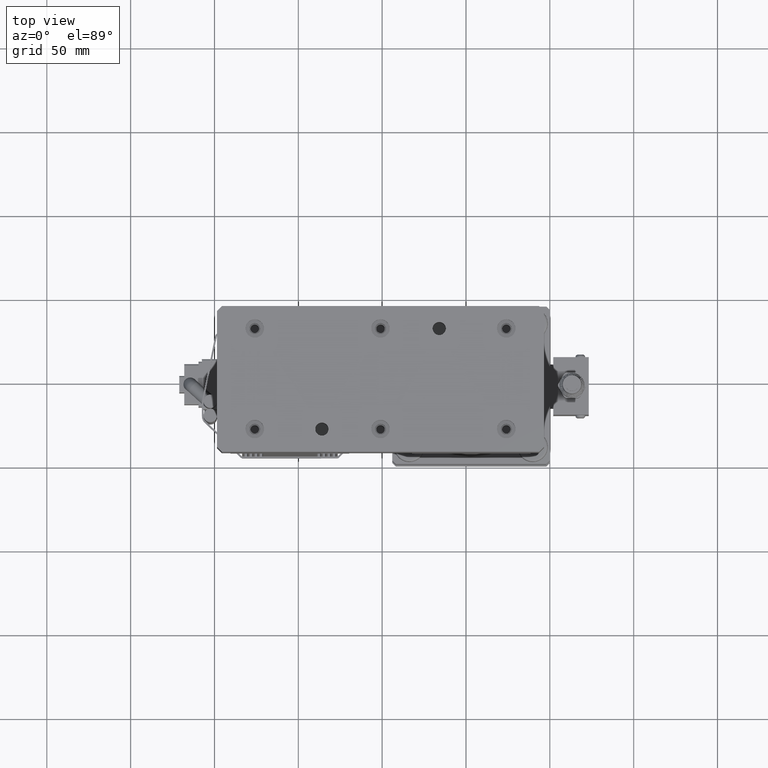
[diagram: clean part render]
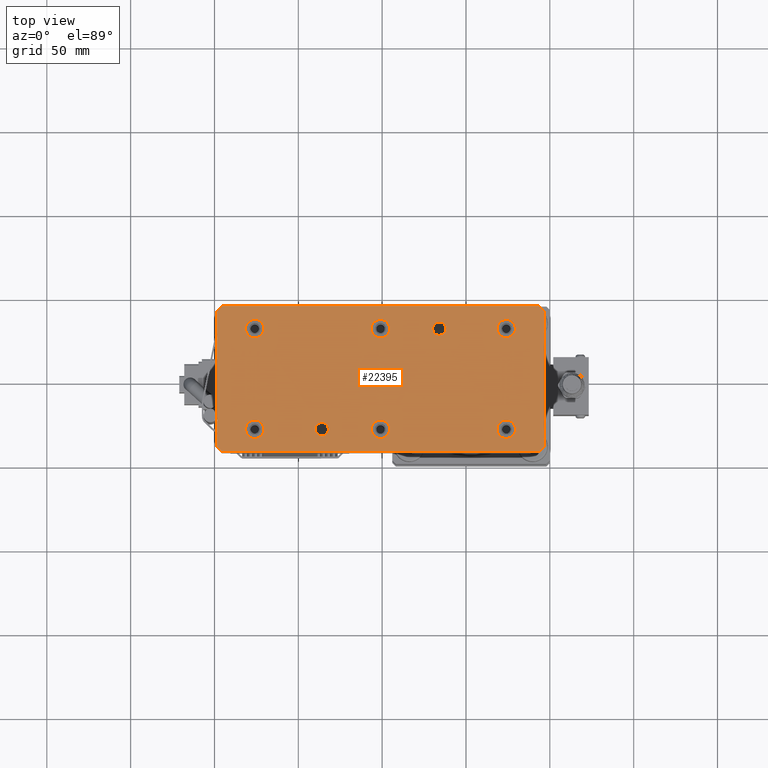
[diagram: same view with one face highlighted and labeled with its STEP entity id]
A machine part, top view. The second image highlights one B-rep face of the part: STEP entity #22395.
In plain terms, the highlighted planar face has unit normal (0, 0, 1).
Its self-contained STEP definition (entity closure, byte-faithful):
#342=FACE_BOUND('',#7704,.T.);
#343=FACE_BOUND('',#7705,.T.);
#344=FACE_BOUND('',#7706,.T.);
#345=FACE_BOUND('',#7707,.T.);
#346=FACE_BOUND('',#7708,.T.);
#347=FACE_BOUND('',#7709,.T.);
#348=FACE_BOUND('',#7710,.T.);
#349=FACE_BOUND('',#7711,.T.);
#985=PLANE('',#24330);
#2922=LINE('',#36479,#4896);
#2926=LINE('',#36487,#4900);
#2929=LINE('',#36493,#4903);
#2930=LINE('',#36495,#4904);
#2931=LINE('',#36497,#4905);
#2932=LINE('',#36499,#4906);
#2933=LINE('',#36501,#4907);
#2934=LINE('',#36502,#4908);
#4896=VECTOR('',#29781,10.);
#4900=VECTOR('',#29787,10.);
#4903=VECTOR('',#29792,10.);
#4904=VECTOR('',#29793,10.);
#4905=VECTOR('',#29794,10.);
#4906=VECTOR('',#29795,10.);
#4907=VECTOR('',#29796,10.);
#4908=VECTOR('',#29797,10.);
#6430=FACE_OUTER_BOUND('',#7703,.T.);
#7703=EDGE_LOOP('',(#19101,#19102,#19103,#19104,#19105,#19106,#19107,#19108));
#7704=EDGE_LOOP('',(#19109));
#7705=EDGE_LOOP('',(#19110));
#7706=EDGE_LOOP('',(#19111));
#7707=EDGE_LOOP('',(#19112));
#7708=EDGE_LOOP('',(#19113));
#7709=EDGE_LOOP('',(#19114));
#7710=EDGE_LOOP('',(#19115));
#7711=EDGE_LOOP('',(#19116));
#8737=CIRCLE('',#24331,3.95);
#8738=CIRCLE('',#24332,3.95);
#8739=CIRCLE('',#24333,5.5);
#8740=CIRCLE('',#24334,5.5);
#8741=CIRCLE('',#24335,5.5);
#8742=CIRCLE('',#24336,5.5);
#8743=CIRCLE('',#24337,5.5);
#8744=CIRCLE('',#24338,5.5);
#10605=VERTEX_POINT('',#36477);
#10606=VERTEX_POINT('',#36478);
#10609=VERTEX_POINT('',#36486);
#10611=VERTEX_POINT('',#36492);
#10612=VERTEX_POINT('',#36494);
#10613=VERTEX_POINT('',#36496);
#10614=VERTEX_POINT('',#36498);
#10615=VERTEX_POINT('',#36500);
#10616=VERTEX_POINT('',#36503);
#10617=VERTEX_POINT('',#36505);
#10618=VERTEX_POINT('',#36507);
#10619=VERTEX_POINT('',#36509);
#10620=VERTEX_POINT('',#36511);
#10621=VERTEX_POINT('',#36513);
#10622=VERTEX_POINT('',#36515);
#10623=VERTEX_POINT('',#36517);
#13505=EDGE_CURVE('',#10605,#10606,#2922,.T.);
#13509=EDGE_CURVE('',#10609,#10606,#2926,.T.);
#13512=EDGE_CURVE('',#10605,#10611,#2929,.T.);
#13513=EDGE_CURVE('',#10612,#10611,#2930,.T.);
#13514=EDGE_CURVE('',#10612,#10613,#2931,.T.);
#13515=EDGE_CURVE('',#10614,#10613,#2932,.T.);
#13516=EDGE_CURVE('',#10614,#10615,#2933,.T.);
#13517=EDGE_CURVE('',#10609,#10615,#2934,.T.);
#13518=EDGE_CURVE('',#10616,#10616,#8737,.T.);
#13519=EDGE_CURVE('',#10617,#10617,#8738,.T.);
#13520=EDGE_CURVE('',#10618,#10618,#8739,.T.);
#13521=EDGE_CURVE('',#10619,#10619,#8740,.T.);
#13522=EDGE_CURVE('',#10620,#10620,#8741,.T.);
#13523=EDGE_CURVE('',#10621,#10621,#8742,.T.);
#13524=EDGE_CURVE('',#10622,#10622,#8743,.T.);
#13525=EDGE_CURVE('',#10623,#10623,#8744,.T.);
#19101=ORIENTED_EDGE('',*,*,#13505,.F.);
#19102=ORIENTED_EDGE('',*,*,#13512,.T.);
#19103=ORIENTED_EDGE('',*,*,#13513,.F.);
#19104=ORIENTED_EDGE('',*,*,#13514,.T.);
#19105=ORIENTED_EDGE('',*,*,#13515,.F.);
#19106=ORIENTED_EDGE('',*,*,#13516,.T.);
#19107=ORIENTED_EDGE('',*,*,#13517,.F.);
#19108=ORIENTED_EDGE('',*,*,#13509,.T.);
#19109=ORIENTED_EDGE('',*,*,#13518,.T.);
#19110=ORIENTED_EDGE('',*,*,#13519,.T.);
#19111=ORIENTED_EDGE('',*,*,#13520,.T.);
#19112=ORIENTED_EDGE('',*,*,#13521,.T.);
#19113=ORIENTED_EDGE('',*,*,#13522,.T.);
#19114=ORIENTED_EDGE('',*,*,#13523,.T.);
#19115=ORIENTED_EDGE('',*,*,#13524,.T.);
#19116=ORIENTED_EDGE('',*,*,#13525,.T.);
#22395=ADVANCED_FACE('',(#6430,#342,#343,#344,#345,#346,#347,#348,#349),
#985,.T.);
#24330=AXIS2_PLACEMENT_3D('',#36491,#29790,#29791);
#24331=AXIS2_PLACEMENT_3D('',#36504,#29798,#29799);
#24332=AXIS2_PLACEMENT_3D('',#36506,#29800,#29801);
#24333=AXIS2_PLACEMENT_3D('',#36508,#29802,#29803);
#24334=AXIS2_PLACEMENT_3D('',#36510,#29804,#29805);
#24335=AXIS2_PLACEMENT_3D('',#36512,#29806,#29807);
#24336=AXIS2_PLACEMENT_3D('',#36514,#29808,#29809);
#24337=AXIS2_PLACEMENT_3D('',#36516,#29810,#29811);
#24338=AXIS2_PLACEMENT_3D('',#36518,#29812,#29813);
#29781=DIRECTION('',(-0.707106781186544,0.707106781186551,6.32407783188727E-17));
#29787=DIRECTION('',(-6.0507154842071E-15,-1.,2.43545397047439E-29));
#29790=DIRECTION('center_axis',(8.94359663936044E-17,2.38133881180411E-29,
1.));
#29791=DIRECTION('ref_axis',(-6.0507154842071E-15,-1.,2.43545397047439E-29));
#29792=DIRECTION('',(1.,-6.0507154842071E-15,-8.94359663936044E-17));
#29793=DIRECTION('',(-0.707106781186552,-0.707106781186543,6.32407783189071E-17));
#29794=DIRECTION('',(6.0507154842071E-15,1.,-2.43545397047439E-29));
#29795=DIRECTION('',(0.707106781186545,-0.70710678118655,-6.32407783188728E-17));
#29796=DIRECTION('',(-1.,6.18735831800712E-15,8.94359663936044E-17));
#29797=DIRECTION('',(0.707106781186552,0.707106781186543,-6.32407783189071E-17));
#29798=DIRECTION('center_axis',(-8.94359663936044E-17,-2.38133881180411E-29,
-1.));
#29799=DIRECTION('ref_axis',(6.0507154842071E-15,1.,-2.43545397047439E-29));
#29800=DIRECTION('center_axis',(-8.94359663936044E-17,-2.38133881180411E-29,
-1.));
#29801=DIRECTION('ref_axis',(6.0507154842071E-15,1.,-2.43545397047439E-29));
#29802=DIRECTION('center_axis',(-8.94359663936044E-17,-2.38133881180411E-29,
-1.));
#29803=DIRECTION('ref_axis',(-6.0507154842071E-15,-1.,2.43545397047439E-29));
#29804=DIRECTION('center_axis',(-8.94359663936044E-17,-2.38133881180411E-29,
-1.));
#29805=DIRECTION('ref_axis',(-6.0507154842071E-15,-1.,2.43545397047439E-29));
#29806=DIRECTION('center_axis',(-8.94359663936044E-17,-2.38133881180411E-29,
-1.));
#29807=DIRECTION('ref_axis',(-6.0507154842071E-15,-1.,2.43545397047439E-29));
#29808=DIRECTION('center_axis',(-8.94359663936044E-17,-2.38133881180411E-29,
-1.));
#29809=DIRECTION('ref_axis',(-6.0507154842071E-15,-1.,2.43545397047439E-29));
#29810=DIRECTION('center_axis',(-8.94359663936044E-17,-2.38133881180411E-29,
-1.));
#29811=DIRECTION('ref_axis',(-6.0507154842071E-15,-1.,2.43545397047439E-29));
#29812=DIRECTION('center_axis',(-8.94359663936044E-17,-2.38133881180411E-29,
-1.));
#29813=DIRECTION('ref_axis',(-6.0507154842071E-15,-1.,2.43545397047439E-29));
#36477=CARTESIAN_POINT('',(-195.500000000001,3.50000000000044,299.));
#36478=CARTESIAN_POINT('',(-198.500000000001,6.50000000000047,299.));
#36479=CARTESIAN_POINT('',(-183.500000000001,-8.49999999999966,299.));
#36486=CARTESIAN_POINT('',(-198.500000000001,87.5000000000005,299.));
#36487=CARTESIAN_POINT('',(-198.500000000001,90.5000000000005,299.));
#36491=CARTESIAN_POINT('Origin',(-101.000000000001,46.9999999999999,299.));
#36492=CARTESIAN_POINT('',(-6.50000000000116,3.4999999999993,299.));
#36493=CARTESIAN_POINT('',(-198.500000000001,3.50000000000046,299.));
#36494=CARTESIAN_POINT('',(-3.50000000000113,6.49999999999929,299.));
#36495=CARTESIAN_POINT('',(-18.5000000000012,-8.50000000000062,299.));
#36496=CARTESIAN_POINT('',(-3.50000000000064,87.4999999999993,299.));
#36497=CARTESIAN_POINT('',(-3.50000000000115,3.49999999999929,299.));
#36498=CARTESIAN_POINT('',(-6.50000000000063,90.4999999999993,299.));
#36499=CARTESIAN_POINT('',(-18.5000000000007,102.499999999999,299.));
#36500=CARTESIAN_POINT('',(-195.500000000001,90.5000000000005,299.));
#36501=CARTESIAN_POINT('',(-3.50000000000062,90.4999999999993,299.));
#36502=CARTESIAN_POINT('',(-183.500000000001,102.5,299.));
#36503=CARTESIAN_POINT('',(-66.0000000000007,73.0499999999997,299.));
#36504=CARTESIAN_POINT('Origin',(-66.0000000000007,76.9999999999997,299.));
#36505=CARTESIAN_POINT('',(-136.000000000001,13.0500000000001,299.));
#36506=CARTESIAN_POINT('Origin',(-136.000000000001,17.0000000000001,299.));
#36507=CARTESIAN_POINT('',(-176.000000000001,82.5000000000003,299.));
#36508=CARTESIAN_POINT('Origin',(-176.000000000001,77.0000000000003,299.));
#36509=CARTESIAN_POINT('',(-101.000000000001,82.4999999999999,299.));
#36510=CARTESIAN_POINT('Origin',(-101.000000000001,76.9999999999999,299.));
#36511=CARTESIAN_POINT('',(-26.0000000000007,82.4999999999994,299.));
#36512=CARTESIAN_POINT('Origin',(-26.0000000000007,76.9999999999994,299.));
#36513=CARTESIAN_POINT('',(-26.000000000001,22.4999999999994,299.));
#36514=CARTESIAN_POINT('Origin',(-26.0000000000011,16.9999999999994,299.));
#36515=CARTESIAN_POINT('',(-101.000000000001,22.4999999999999,299.));
#36516=CARTESIAN_POINT('Origin',(-101.000000000001,16.9999999999999,299.));
#36517=CARTESIAN_POINT('',(-176.000000000001,22.5000000000003,299.));
#36518=CARTESIAN_POINT('Origin',(-176.000000000001,17.0000000000003,299.));